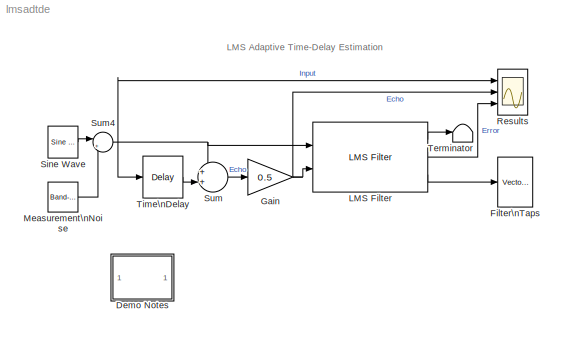
MODEL lmsadtde
KIND model
CONFIG AbsTol = auto
CONFIG FixedStep = auto
CONFIG MaxStep = auto
CONFIG MinStep = auto
CONFIG RelTol = 1e-3
CONFIG Solver = FixedStepDiscrete
CONFIG SolverMode = Auto
CONFIG StartTime = 0.0
CONFIG StopTime = 10.0
BLOCK [SubSystem] Demo Notes
  MaskDisplay = disp('Info')
  MaskIconFrame = on
  MaskIconOpaque = on
  MaskIconRotate = none
  MaskIconUnits = autoscale
  Ports = []
  TreatAsAtomicUnit = off
BLOCK [Reference] Filter\nTaps  REF=dspsnks4/Vector\nScope
  AxisGrid = on
  AxisLegend = off
  AxisProperties = on
  AxisZoom = on
  DisplayProperties = off
  Domain = User-defined
  FigPos = [48 228 378 270]
  FrameNumber = on
  HorizSpan = 1
  InheritXIncr = off
  LineColors = [0 0 1]
  LineDisables = on
  LineMarkers = .
  LineProperties = off
  LineStyles = :
  Memory = off
  OpenScopeAtSimStart = on
  OpenScopeImmediately = off
  Ports = [1]
  ScopeProperties = off
  SourceBlock = dspsnks4/Vector\nScope
  SourceType = Vector Scope
  XIncr = 1
  XLabel = Samples
  XRange = [0...Fs/2]
  XUnits = Hertz
  YLabel = Filter Coefficients
  YMax = 0.6
  YMin = -0.2
  YUnits = dB
BLOCK [Gain] Gain
  Gain = 0.5
BLOCK [Reference] LMS Filter  REF=dspadpt3/LMS Filter
  Adapt = off
  Algo = Normalized LMS
  L = 14
  Ports = [2, 3]
  SourceBlock = dspadpt3/LMS Filter
  SourceType = LMS Filter
  addnparflag = off
  ic = 0
  leakage = 1.0
  mu = 0.5
  resetflag = None
  stepflag = Dialog
  weights = on
BLOCK [Reference] Measurement\nNoise  REF=simulink/Sources/Band-Limited\nWhite Noise
  Cov = 0.5e-4
  Ports = [0, 1]
  SourceBlock = simulink/Sources/Band-Limited\nWhite Noise
  SourceType = Band-Limited White Noise.
  Ts = 1e-3
  VectorParams1D = on
  seed = [23341]
BLOCK [Scope] Results
  DataFormat = Array
  NumInputPorts = 3
  Ports = [3]
  TimeRange = 0.25
  YMax = 1.5~1.5~0.5
  YMin = -1.5~-1.5~-0.5
BLOCK [Reference] Sine Wave  REF=dspsrcs4/Sine Wave
  Amplitude = 1
  CompMethod = Trigonometric fcn
  Frequency = 50
  OutComplex = Real
  Phase = 0
  Ports = [0, 1]
  ResetState = Restart at time zero
  SampleMode = Discrete
  SampleTime = 1e-3
  SamplesPerFrame = 1
  SourceBlock = dspsrcs4/Sine Wave
  SourceType = Sine Wave
  TableSize = Speed
  additionalParams = off
  allowOverrides = on
  dataType = double
  fracBitsMode = Best precision
  numFracBits = 14
  udDataType = sfix(16)
  wordLen = 16
BLOCK [Sum] Sum
  IconShape = round
  Inputs = ++|
  Ports = [2, 1]
BLOCK [Sum] Sum4
  IconShape = round
  Inputs = |+-
  Ports = [2, 1]
BLOCK [Terminator] Terminator
BLOCK [Reference] Time\nDelay  REF=dspsigops/Delay
  Ports = [1, 1]
  SourceBlock = dspsigops/Delay
  SourceType = Delay
  delay = 8
  dif_ic_for_ch = off
  dif_ic_for_dly = off
  dly_unit = Samples
  ic = 0
  ic_detail = off
  reset_popup = None
ANNOTATION (root): LMS Adaptive Time-Delay Estimation
ANNOTATION Demo Notes: Adaptive Time-Delay Estimation\n\nThis demonstrates the ability of the LMS Adaptive FIR\nalgorithm to adaptively estimate the time delay\nfor a noisy input signal.\n\nThe peak in the filter taps vector indicates the\ntime-delay estimate.\n\nFor more information on LMS filtering, see\nS. Haykin, \"Adaptive Filter Theory\",\n3rd Ed., Prentice Hall, 1996.
NET Gain:1 -> LMS Filter:2, Results:2
LINE LMS Filter:1 -> Terminator:1
LINE LMS Filter:2 -> Results:3
LINE LMS Filter:3 -> Filter\nTaps:1
LINE Measurement\nNoise:1 -> Sum4:2
LINE Sine Wave:1 -> Sum4:1
NET Sum4:1 -> LMS Filter:1, Results:1, Sum:1, Time\nDelay:1
LINE Sum:1 -> Gain:1
LINE Time\nDelay:1 -> Sum:2
note: NET lines group one-source signal fan-out (src -> all destinations, sorted); 1:1 wires keep LINE
